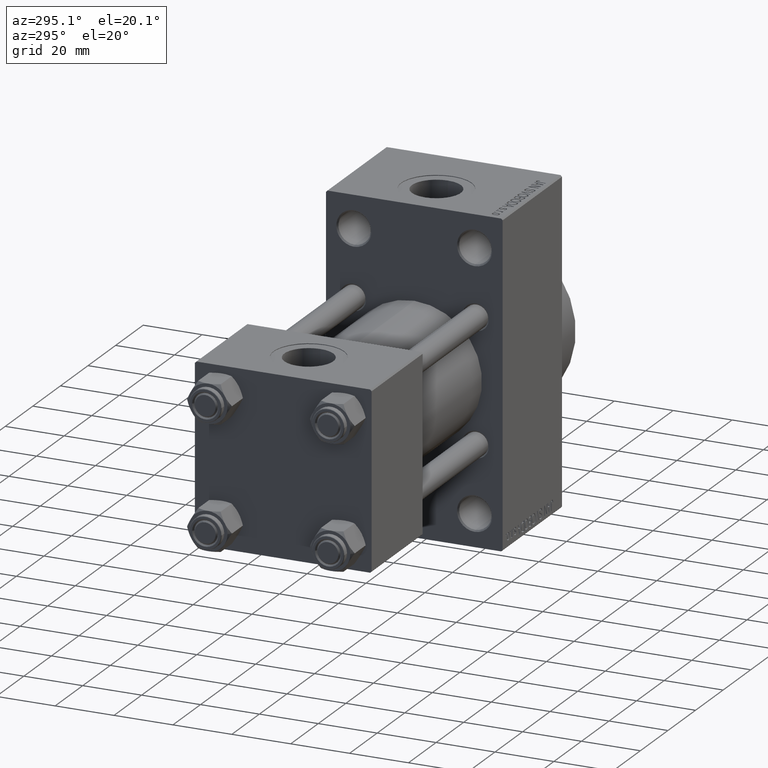
[diagram: clean part render]
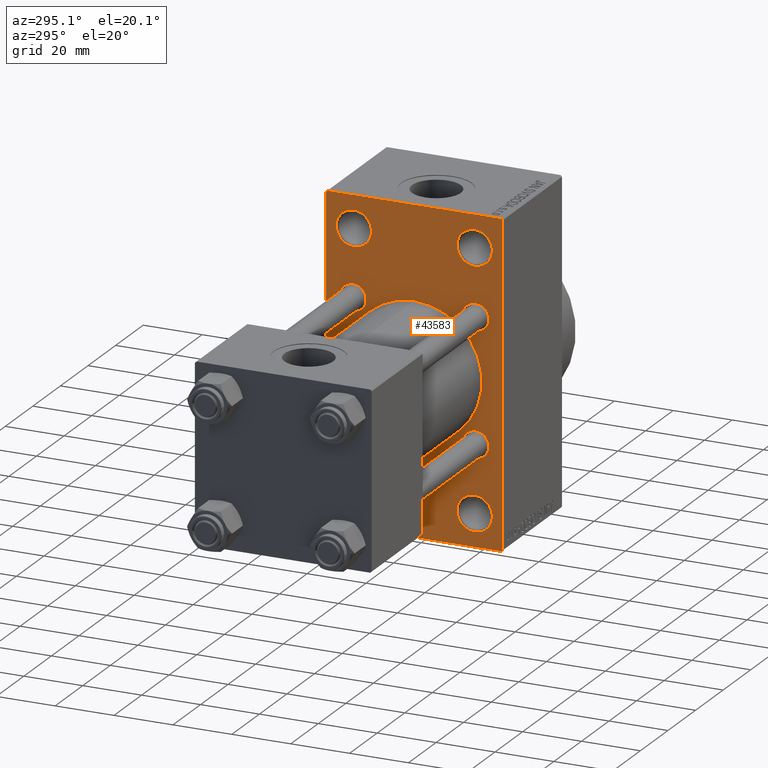
[diagram: same view with one face highlighted and labeled with its STEP entity id]
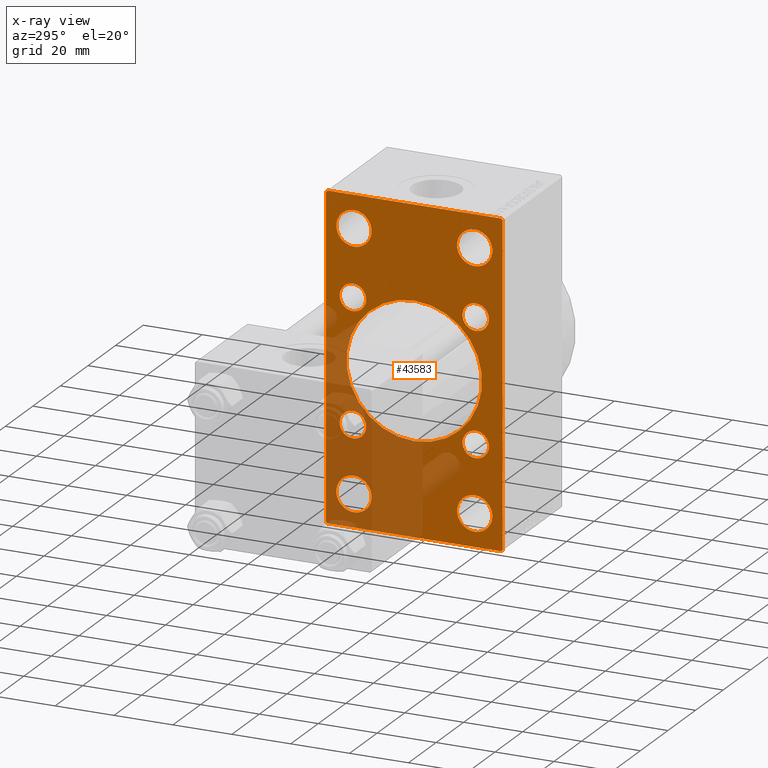
[diagram: x-ray of the same camera — body ghosted, the highlighted face saturated]
A machine part, auxiliary view. The second image highlights one B-rep face of the part: STEP entity #43583.
The next image is the same camera in x-ray: the body ghosted, the highlighted face saturated — about 33% of this face is hidden behind the body in this view.
In plain terms, the highlighted planar face has unit normal (-1, 0, 0).
Its self-contained STEP definition (entity closure, byte-faithful):
#114 = CARTESIAN_POINT ( 'NONE',  ( 95.00000000000000000, -30.00000000000000000, -53.99999999999998579 ) ) ;
#309 = CARTESIAN_POINT ( 'NONE',  ( 95.00000000000000000, 29.99999999999999645, 54.49999999999999289 ) ) ;
#493 = EDGE_CURVE ( 'NONE', #33752, #45703, #40603, .T. ) ;
#966 = CARTESIAN_POINT ( 'NONE',  ( 95.00000000000000000, 20.50000000000000000, -49.49999999999989342 ) ) ;
#1009 = EDGE_LOOP ( 'NONE', ( #5706, #17401 ) ) ;
#1228 = EDGE_CURVE ( 'NONE', #21912, #37575, #23251, .T. ) ;
#2008 = EDGE_CURVE ( 'NONE', #6698, #41210, #5831, .T. ) ;
#2037 = ORIENTED_EDGE ( 'NONE', *, *, #6344, .F. ) ;
#2277 = EDGE_CURVE ( 'NONE', #45703, #33752, #12196, .T. ) ;
#2357 = AXIS2_PLACEMENT_3D ( 'NONE', #40967, #37966, #44674 ) ;
#2407 = CARTESIAN_POINT ( 'NONE',  ( 95.00000000000000000, -20.84999999999999076, 20.85000000000000497 ) ) ;
#2445 = DIRECTION ( 'NONE',  ( 1.000000000000000000, -0.000000000000000000, 0.000000000000000000 ) ) ;
#2450 = CARTESIAN_POINT ( 'NONE',  ( 95.00000000000000000, 20.84999999999999787, -16.34999999999999432 ) ) ;
#2635 = CARTESIAN_POINT ( 'NONE',  ( 95.00000000000000000, -20.50000000000000000, 43.50000000000000000 ) ) ;
#2868 = CARTESIAN_POINT ( 'NONE',  ( 95.00000000000000000, -20.84999999999999076, -16.34999999999999787 ) ) ;
#2881 = CARTESIAN_POINT ( 'NONE',  ( 95.00000000000000000, -20.50000000000000000, 37.50000000000009948 ) ) ;
#3030 = EDGE_CURVE ( 'NONE', #25719, #4137, #48561, .T. ) ;
#3082 = CIRCLE ( 'NONE', #27627, 4.500000000000007105 ) ;
#3130 = DIRECTION ( 'NONE',  ( 1.000000000000000000, -0.000000000000000000, 0.000000000000000000 ) ) ;
#3325 = ORIENTED_EDGE ( 'NONE', *, *, #37409, .T. ) ;
#3609 = AXIS2_PLACEMENT_3D ( 'NONE', #44060, #2445, #35887 ) ;
#3653 = VERTEX_POINT ( 'NONE', #2881 ) ;
#3775 = ORIENTED_EDGE ( 'NONE', *, *, #2277, .T. ) ;
#4137 = VERTEX_POINT ( 'NONE', #19152 ) ;
#4773 = CARTESIAN_POINT ( 'NONE',  ( 95.00000000000000000, -20.84999999999999076, 16.34999999999999787 ) ) ;
#5491 = DIRECTION ( 'NONE',  ( 1.000000000000000000, -0.000000000000000000, 0.000000000000000000 ) ) ;
#5641 = PLANE ( 'NONE',  #37311 ) ;
#5706 = ORIENTED_EDGE ( 'NONE', *, *, #3030, .T. ) ;
#5831 = CIRCLE ( 'NONE', #33476, 5.999999999999894307 ) ;
#6296 = DIRECTION ( 'NONE',  ( 1.000000000000000000, -0.000000000000000000, 0.000000000000000000 ) ) ;
#6299 = EDGE_LOOP ( 'NONE', ( #48462, #29989 ) ) ;
#6344 = EDGE_CURVE ( 'NONE', #23209, #22646, #26307, .T. ) ;
#6584 = CARTESIAN_POINT ( 'NONE',  ( 95.00000000000000000, 29.49999999999999645, -54.49999999999999289 ) ) ;
#6698 = VERTEX_POINT ( 'NONE', #36423 ) ;
#6787 = CARTESIAN_POINT ( 'NONE',  ( 95.00000000000000000, 29.99999999999999645, -53.99999999999999289 ) ) ;
#7248 = CIRCLE ( 'NONE', #26215, 5.999999999999894307 ) ;
#7267 = DIRECTION ( 'NONE',  ( 1.000000000000000000, -0.000000000000000000, 0.000000000000000000 ) ) ;
#7418 = EDGE_CURVE ( 'NONE', #28485, #36546, #15395, .T. ) ;
#7431 = EDGE_CURVE ( 'NONE', #23236, #36546, #28003, .T. ) ;
#7649 = CARTESIAN_POINT ( 'NONE',  ( 95.00000000000000000, 20.50000000000000000, 37.50000000000009948 ) ) ;
#7671 = DIRECTION ( 'NONE',  ( -0.000000000000000000, -0.7071067811865474617, -0.7071067811865474617 ) ) ;
#8080 = EDGE_CURVE ( 'NONE', #9582, #44857, #9889, .T. ) ;
#8228 = CARTESIAN_POINT ( 'NONE',  ( 95.00000000000000000, -20.50000000000000000, -37.50000000000009948 ) ) ;
#8729 = DIRECTION ( 'NONE',  ( 1.000000000000000000, -0.000000000000000000, 0.000000000000000000 ) ) ;
#9004 = AXIS2_PLACEMENT_3D ( 'NONE', #2407, #3130, #40529 ) ;
#9119 = CARTESIAN_POINT ( 'NONE',  ( 95.00000000000000000, 20.84999999999999787, 16.34999999999999432 ) ) ;
#9436 = CARTESIAN_POINT ( 'NONE',  ( 95.00000000000000000, -30.00000000000000000, 54.50000000000000000 ) ) ;
#9582 = VERTEX_POINT ( 'NONE', #24610 ) ;
#9590 = CIRCLE ( 'NONE', #46752, 4.500000000000007105 ) ;
#9841 = EDGE_CURVE ( 'NONE', #19465, #28032, #3082, .T. ) ;
#9859 = FACE_BOUND ( 'NONE', #16601, .T. ) ;
#9889 = CIRCLE ( 'NONE', #32041, 23.00000000000000000 ) ;
#10366 = EDGE_CURVE ( 'NONE', #23209, #20829, #28634, .T. ) ;
#10675 = CARTESIAN_POINT ( 'NONE',  ( 95.00000000000000000, 20.84999999999999787, -20.85000000000000142 ) ) ;
#10837 = EDGE_CURVE ( 'NONE', #28032, #19465, #13428, .T. ) ;
#10886 = LINE ( 'NONE', #48977, #30011 ) ;
#11203 = EDGE_CURVE ( 'NONE', #4137, #25719, #36347, .T. ) ;
#11245 = EDGE_CURVE ( 'NONE', #20829, #29088, #10886, .T. ) ;
#11259 = CARTESIAN_POINT ( 'NONE',  ( 95.00000000000000000, 20.50000000000000000, 49.49999999999989342 ) ) ;
#11868 = FACE_BOUND ( 'NONE', #38235, .T. ) ;
#12134 = DIRECTION ( 'NONE',  ( 0.000000000000000000, 0.000000000000000000, 1.000000000000000000 ) ) ;
#12196 = CIRCLE ( 'NONE', #22471, 5.999999999999894307 ) ;
#12387 = ORIENTED_EDGE ( 'NONE', *, *, #32466, .T. ) ;
#13035 = DIRECTION ( 'NONE',  ( 0.000000000000000000, 0.000000000000000000, 1.000000000000000000 ) ) ;
#13428 = CIRCLE ( 'NONE', #2357, 4.500000000000007105 ) ;
#13565 = FACE_BOUND ( 'NONE', #27387, .T. ) ;
#14193 = EDGE_LOOP ( 'NONE', ( #19986, #42072, #37535, #14805, #2037, #29448, #36638, #16613 ) ) ;
#14790 = DIRECTION ( 'NONE',  ( 0.000000000000000000, 0.000000000000000000, -1.000000000000000000 ) ) ;
#14805 = ORIENTED_EDGE ( 'NONE', *, *, #45612, .T. ) ;
#14892 = DIRECTION ( 'NONE',  ( 0.000000000000000000, 0.000000000000000000, 1.000000000000000000 ) ) ;
#15377 = CARTESIAN_POINT ( 'NONE',  ( 95.00000000000000000, -20.84999999999999076, 20.85000000000000497 ) ) ;
#15395 = LINE ( 'NONE', #45601, #46252 ) ;
#16008 = ORIENTED_EDGE ( 'NONE', *, *, #28900, .T. ) ;
#16193 = LINE ( 'NONE', #46625, #41457 ) ;
#16439 = DIRECTION ( 'NONE',  ( 0.000000000000000000, -1.000000000000000000, -1.156482317317871478E-16 ) ) ;
#16601 = EDGE_LOOP ( 'NONE', ( #38370, #44118 ) ) ;
#16613 = ORIENTED_EDGE ( 'NONE', *, *, #43398, .T. ) ;
#17139 = DIRECTION ( 'NONE',  ( 0.000000000000000000, 0.000000000000000000, 1.000000000000000000 ) ) ;
#17336 = DIRECTION ( 'NONE',  ( 0.000000000000000000, 0.000000000000000000, 1.000000000000000000 ) ) ;
#17401 = ORIENTED_EDGE ( 'NONE', *, *, #11203, .T. ) ;
#17752 = DIRECTION ( 'NONE',  ( 1.000000000000000000, -0.000000000000000000, 0.000000000000000000 ) ) ;
#18582 = DIRECTION ( 'NONE',  ( 1.000000000000000000, -0.000000000000000000, 0.000000000000000000 ) ) ;
#18812 = LINE ( 'NONE', #22272, #32577 ) ;
#18859 = EDGE_LOOP ( 'NONE', ( #31043, #46426 ) ) ;
#19152 = CARTESIAN_POINT ( 'NONE',  ( 95.00000000000000000, 20.84999999999999787, -25.35000000000000853 ) ) ;
#19211 = CIRCLE ( 'NONE', #46870, 4.500000000000007105 ) ;
#19283 = EDGE_CURVE ( 'NONE', #3653, #48858, #25555, .T. ) ;
#19465 = VERTEX_POINT ( 'NONE', #35527 ) ;
#19583 = CARTESIAN_POINT ( 'NONE',  ( 95.00000000000000000, -20.50000000000000000, -43.50000000000000000 ) ) ;
#19986 = ORIENTED_EDGE ( 'NONE', *, *, #48258, .T. ) ;
#20245 = AXIS2_PLACEMENT_3D ( 'NONE', #37463, #7267, #30274 ) ;
#20533 = AXIS2_PLACEMENT_3D ( 'NONE', #31697, #27993, #47052 ) ;
#20797 = VECTOR ( 'NONE', #33545, 1000.000000000000114 ) ;
#20829 = VERTEX_POINT ( 'NONE', #34924 ) ;
#21202 = CIRCLE ( 'NONE', #27508, 4.500000000000007105 ) ;
#21260 = DIRECTION ( 'NONE',  ( -0.000000000000000000, 0.000000000000000000, 1.000000000000000000 ) ) ;
#21912 = VERTEX_POINT ( 'NONE', #44660 ) ;
#22080 = VECTOR ( 'NONE', #47207, 1000.000000000000000 ) ;
#22240 = EDGE_CURVE ( 'NONE', #37575, #21912, #19211, .T. ) ;
#22272 = CARTESIAN_POINT ( 'NONE',  ( 95.00000000000000000, 41.99999999999998579, -41.99999999999998579 ) ) ;
#22471 = AXIS2_PLACEMENT_3D ( 'NONE', #19583, #42593, #28212 ) ;
#22646 = VERTEX_POINT ( 'NONE', #32061 ) ;
#23209 = VERTEX_POINT ( 'NONE', #35412 ) ;
#23236 = VERTEX_POINT ( 'NONE', #39615 ) ;
#23251 = CIRCLE ( 'NONE', #9004, 4.500000000000007105 ) ;
#23547 = VERTEX_POINT ( 'NONE', #9119 ) ;
#24324 = DIRECTION ( 'NONE',  ( 0.000000000000000000, 0.000000000000000000, 1.000000000000000000 ) ) ;
#24610 = CARTESIAN_POINT ( 'NONE',  ( 95.00000000000000000, -2.602085213965210642E-15, 23.00000000000000000 ) ) ;
#24627 = VERTEX_POINT ( 'NONE', #37147 ) ;
#24710 = FACE_BOUND ( 'NONE', #32332, .T. ) ;
#24961 = FACE_BOUND ( 'NONE', #30706, .T. ) ;
#25555 = CIRCLE ( 'NONE', #37401, 5.999999999999894307 ) ;
#25719 = VERTEX_POINT ( 'NONE', #2450 ) ;
#25772 = DIRECTION ( 'NONE',  ( 0.000000000000000000, 0.000000000000000000, 1.000000000000000000 ) ) ;
#26215 = AXIS2_PLACEMENT_3D ( 'NONE', #46839, #8729, #24324 ) ;
#26234 = CARTESIAN_POINT ( 'NONE',  ( 95.00000000000000000, -20.84999999999999076, -20.85000000000000497 ) ) ;
#26307 = LINE ( 'NONE', #309, #42418 ) ;
#27174 = AXIS2_PLACEMENT_3D ( 'NONE', #45338, #33703, #14892 ) ;
#27387 = EDGE_LOOP ( 'NONE', ( #40195, #38818 ) ) ;
#27508 = AXIS2_PLACEMENT_3D ( 'NONE', #28617, #35798, #13035 ) ;
#27627 = AXIS2_PLACEMENT_3D ( 'NONE', #26234, #18582, #12134 ) ;
#27953 = CIRCLE ( 'NONE', #40613, 5.999999999999894307 ) ;
#27993 = DIRECTION ( 'NONE',  ( 1.000000000000000000, -0.000000000000000000, 0.000000000000000000 ) ) ;
#28003 = LINE ( 'NONE', #9436, #28859 ) ;
#28027 = VERTEX_POINT ( 'NONE', #6584 ) ;
#28032 = VERTEX_POINT ( 'NONE', #2868 ) ;
#28212 = DIRECTION ( 'NONE',  ( 0.000000000000000000, 0.000000000000000000, 1.000000000000000000 ) ) ;
#28470 = CARTESIAN_POINT ( 'NONE',  ( 95.00000000000000000, -20.50000000000000000, 43.50000000000000000 ) ) ;
#28485 = VERTEX_POINT ( 'NONE', #29784 ) ;
#28617 = CARTESIAN_POINT ( 'NONE',  ( 95.00000000000000000, 20.84999999999999787, 20.85000000000000142 ) ) ;
#28634 = LINE ( 'NONE', #32100, #22080 ) ;
#28859 = VECTOR ( 'NONE', #38660, 1000.000000000000000 ) ;
#28900 = EDGE_CURVE ( 'NONE', #41210, #6698, #41582, .T. ) ;
#29088 = VERTEX_POINT ( 'NONE', #6787 ) ;
#29151 = EDGE_CURVE ( 'NONE', #39595, #33312, #46315, .T. ) ;
#29385 = CARTESIAN_POINT ( 'NONE',  ( 95.00000000000000000, -2.602085213965210642E-15, 0.000000000000000000 ) ) ;
#29448 = ORIENTED_EDGE ( 'NONE', *, *, #10366, .T. ) ;
#29784 = CARTESIAN_POINT ( 'NONE',  ( 95.00000000000000000, -29.50000000000000355, -54.50000000000000000 ) ) ;
#29989 = ORIENTED_EDGE ( 'NONE', *, *, #22240, .T. ) ;
#30011 = VECTOR ( 'NONE', #37358, 1000.000000000000000 ) ;
#30018 = DIRECTION ( 'NONE',  ( 0.000000000000000000, -1.000000000000000000, 1.156482317317871478E-16 ) ) ;
#30274 = DIRECTION ( 'NONE',  ( 0.000000000000000000, 0.000000000000000000, 1.000000000000000000 ) ) ;
#30706 = EDGE_LOOP ( 'NONE', ( #45013, #16008 ) ) ;
#31043 = ORIENTED_EDGE ( 'NONE', *, *, #46504, .T. ) ;
#31697 = CARTESIAN_POINT ( 'NONE',  ( 95.00000000000000000, 20.84999999999999787, -20.85000000000000142 ) ) ;
#31933 = ORIENTED_EDGE ( 'NONE', *, *, #8080, .T. ) ;
#32041 = AXIS2_PLACEMENT_3D ( 'NONE', #29385, #44494, #14790 ) ;
#32061 = CARTESIAN_POINT ( 'NONE',  ( 95.00000000000000000, -29.49999999999997513, 54.50000000000000000 ) ) ;
#32100 = CARTESIAN_POINT ( 'NONE',  ( 95.00000000000000000, 42.00000000000082423, 41.99999999999849365 ) ) ;
#32108 = DIRECTION ( 'NONE',  ( 0.000000000000000000, 0.000000000000000000, 1.000000000000000000 ) ) ;
#32332 = EDGE_LOOP ( 'NONE', ( #31933, #12387 ) ) ;
#32466 = EDGE_CURVE ( 'NONE', #44857, #9582, #39319, .T. ) ;
#32577 = VECTOR ( 'NONE', #7671, 1000.000000000000114 ) ;
#32609 = CARTESIAN_POINT ( 'NONE',  ( 95.00000000000000000, 0.000000000000000000, 0.000000000000000000 ) ) ;
#33261 = EDGE_CURVE ( 'NONE', #24627, #23547, #21202, .T. ) ;
#33312 = VERTEX_POINT ( 'NONE', #11259 ) ;
#33476 = AXIS2_PLACEMENT_3D ( 'NONE', #35447, #5491, #17139 ) ;
#33545 = DIRECTION ( 'NONE',  ( -0.000000000000000000, 0.7071067811865451302, 0.7071067811865500152 ) ) ;
#33703 = DIRECTION ( 'NONE',  ( 1.000000000000000000, -0.000000000000000000, 0.000000000000000000 ) ) ;
#33752 = VERTEX_POINT ( 'NONE', #8228 ) ;
#33786 = AXIS2_PLACEMENT_3D ( 'NONE', #35185, #41706, #42631 ) ;
#34603 = ORIENTED_EDGE ( 'NONE', *, *, #493, .T. ) ;
#34632 = CARTESIAN_POINT ( 'NONE',  ( 95.00000000000000000, -20.50000000000000000, 49.49999999999989342 ) ) ;
#34924 = CARTESIAN_POINT ( 'NONE',  ( 95.00000000000000000, 29.99999999999999645, 53.99999999999999289 ) ) ;
#35185 = CARTESIAN_POINT ( 'NONE',  ( 95.00000000000000000, -2.602085213965210642E-15, 0.000000000000000000 ) ) ;
#35412 = CARTESIAN_POINT ( 'NONE',  ( 95.00000000000000000, 29.50000000000002132, 54.49999999999999289 ) ) ;
#35447 = CARTESIAN_POINT ( 'NONE',  ( 95.00000000000000000, 20.50000000000000000, -43.50000000000000000 ) ) ;
#35527 = CARTESIAN_POINT ( 'NONE',  ( 95.00000000000000000, -20.84999999999999076, -25.35000000000001208 ) ) ;
#35738 = EDGE_LOOP ( 'NONE', ( #45311, #3325 ) ) ;
#35798 = DIRECTION ( 'NONE',  ( 1.000000000000000000, -0.000000000000000000, 0.000000000000000000 ) ) ;
#35887 = DIRECTION ( 'NONE',  ( 0.000000000000000000, 0.000000000000000000, 1.000000000000000000 ) ) ;
#35934 = AXIS2_PLACEMENT_3D ( 'NONE', #10675, #40391, #25772 ) ;
#36258 = DIRECTION ( 'NONE',  ( 0.000000000000000000, 0.000000000000000000, 1.000000000000000000 ) ) ;
#36335 = FACE_BOUND ( 'NONE', #35738, .T. ) ;
#36347 = CIRCLE ( 'NONE', #20533, 4.500000000000007105 ) ;
#36423 = CARTESIAN_POINT ( 'NONE',  ( 95.00000000000000000, 20.50000000000000000, -37.50000000000009948 ) ) ;
#36546 = VERTEX_POINT ( 'NONE', #114 ) ;
#36638 = ORIENTED_EDGE ( 'NONE', *, *, #11245, .T. ) ;
#37147 = CARTESIAN_POINT ( 'NONE',  ( 95.00000000000000000, 20.84999999999999787, 25.35000000000000853 ) ) ;
#37311 = AXIS2_PLACEMENT_3D ( 'NONE', #32609, #43296, #21260 ) ;
#37358 = DIRECTION ( 'NONE',  ( 0.000000000000000000, 0.000000000000000000, -1.000000000000000000 ) ) ;
#37401 = AXIS2_PLACEMENT_3D ( 'NONE', #2635, #17752, #32108 ) ;
#37409 = EDGE_CURVE ( 'NONE', #23547, #24627, #9590, .T. ) ;
#37463 = CARTESIAN_POINT ( 'NONE',  ( 95.00000000000000000, 20.50000000000000000, 43.50000000000000000 ) ) ;
#37535 = ORIENTED_EDGE ( 'NONE', *, *, #7431, .F. ) ;
#37575 = VERTEX_POINT ( 'NONE', #4773 ) ;
#37966 = DIRECTION ( 'NONE',  ( 1.000000000000000000, -0.000000000000000000, 0.000000000000000000 ) ) ;
#38155 = DIRECTION ( 'NONE',  ( 0.000000000000000000, -0.7071067811865352493, 0.7071067811865597852 ) ) ;
#38235 = EDGE_LOOP ( 'NONE', ( #34603, #3775 ) ) ;
#38370 = ORIENTED_EDGE ( 'NONE', *, *, #39140, .T. ) ;
#38396 = DIRECTION ( 'NONE',  ( 0.000000000000000000, 0.000000000000000000, 1.000000000000000000 ) ) ;
#38576 = CARTESIAN_POINT ( 'NONE',  ( 95.00000000000000000, 20.84999999999999787, 20.85000000000000142 ) ) ;
#38660 = DIRECTION ( 'NONE',  ( 0.000000000000000000, 0.000000000000000000, -1.000000000000000000 ) ) ;
#38818 = ORIENTED_EDGE ( 'NONE', *, *, #9841, .T. ) ;
#39140 = EDGE_CURVE ( 'NONE', #33312, #39595, #7248, .T. ) ;
#39319 = CIRCLE ( 'NONE', #33786, 23.00000000000000000 ) ;
#39595 = VERTEX_POINT ( 'NONE', #7649 ) ;
#39615 = CARTESIAN_POINT ( 'NONE',  ( 95.00000000000000000, -30.00000000000000000, 53.99999999999997158 ) ) ;
#40061 = FACE_OUTER_BOUND ( 'NONE', #14193, .T. ) ;
#40195 = ORIENTED_EDGE ( 'NONE', *, *, #10837, .T. ) ;
#40299 = FACE_BOUND ( 'NONE', #6299, .T. ) ;
#40391 = DIRECTION ( 'NONE',  ( 1.000000000000000000, -0.000000000000000000, 0.000000000000000000 ) ) ;
#40499 = LINE ( 'NONE', #48153, #20797 ) ;
#40529 = DIRECTION ( 'NONE',  ( 0.000000000000000000, 0.000000000000000000, 1.000000000000000000 ) ) ;
#40603 = CIRCLE ( 'NONE', #27174, 5.999999999999894307 ) ;
#40613 = AXIS2_PLACEMENT_3D ( 'NONE', #28470, #47046, #17336 ) ;
#40967 = CARTESIAN_POINT ( 'NONE',  ( 95.00000000000000000, -20.84999999999999076, -20.85000000000000497 ) ) ;
#41210 = VERTEX_POINT ( 'NONE', #966 ) ;
#41457 = VECTOR ( 'NONE', #16439, 1000.000000000000000 ) ;
#41582 = CIRCLE ( 'NONE', #3609, 5.999999999999894307 ) ;
#41706 = DIRECTION ( 'NONE',  ( 1.000000000000000000, 0.000000000000000000, 0.000000000000000000 ) ) ;
#42072 = ORIENTED_EDGE ( 'NONE', *, *, #7418, .T. ) ;
#42418 = VECTOR ( 'NONE', #30018, 1000.000000000000000 ) ;
#42593 = DIRECTION ( 'NONE',  ( 1.000000000000000000, -0.000000000000000000, 0.000000000000000000 ) ) ;
#42631 = DIRECTION ( 'NONE',  ( 0.000000000000000000, 0.000000000000000000, -1.000000000000000000 ) ) ;
#43296 = DIRECTION ( 'NONE',  ( -1.000000000000000000, 0.000000000000000000, -0.000000000000000000 ) ) ;
#43398 = EDGE_CURVE ( 'NONE', #29088, #28027, #18812, .T. ) ;
#43583 = ADVANCED_FACE ( 'NONE', ( #45776, #11868, #24961, #9859, #40299, #36335, #46994, #13565, #24710, #40061 ), #5641, .T. ) ;
#44060 = CARTESIAN_POINT ( 'NONE',  ( 95.00000000000000000, 20.50000000000000000, -43.50000000000000000 ) ) ;
#44118 = ORIENTED_EDGE ( 'NONE', *, *, #29151, .T. ) ;
#44494 = DIRECTION ( 'NONE',  ( 1.000000000000000000, 0.000000000000000000, 0.000000000000000000 ) ) ;
#44660 = CARTESIAN_POINT ( 'NONE',  ( 95.00000000000000000, -20.84999999999999076, 25.35000000000001208 ) ) ;
#44674 = DIRECTION ( 'NONE',  ( 0.000000000000000000, 0.000000000000000000, 1.000000000000000000 ) ) ;
#44857 = VERTEX_POINT ( 'NONE', #45670 ) ;
#45013 = ORIENTED_EDGE ( 'NONE', *, *, #2008, .T. ) ;
#45183 = CARTESIAN_POINT ( 'NONE',  ( 95.00000000000000000, -20.50000000000000000, -49.49999999999989342 ) ) ;
#45311 = ORIENTED_EDGE ( 'NONE', *, *, #33261, .T. ) ;
#45338 = CARTESIAN_POINT ( 'NONE',  ( 95.00000000000000000, -20.50000000000000000, -43.50000000000000000 ) ) ;
#45601 = CARTESIAN_POINT ( 'NONE',  ( 95.00000000000000000, -42.00000000000051159, -41.99999999999905498 ) ) ;
#45612 = EDGE_CURVE ( 'NONE', #23236, #22646, #40499, .T. ) ;
#45670 = CARTESIAN_POINT ( 'NONE',  ( 95.00000000000000000, 2.146024240737012665E-16, -23.00000000000000000 ) ) ;
#45703 = VERTEX_POINT ( 'NONE', #45183 ) ;
#45776 = FACE_BOUND ( 'NONE', #18859, .T. ) ;
#46252 = VECTOR ( 'NONE', #38155, 1000.000000000000000 ) ;
#46311 = DIRECTION ( 'NONE',  ( 1.000000000000000000, -0.000000000000000000, 0.000000000000000000 ) ) ;
#46315 = CIRCLE ( 'NONE', #20245, 5.999999999999894307 ) ;
#46426 = ORIENTED_EDGE ( 'NONE', *, *, #19283, .T. ) ;
#46504 = EDGE_CURVE ( 'NONE', #48858, #3653, #27953, .T. ) ;
#46625 = CARTESIAN_POINT ( 'NONE',  ( 95.00000000000000000, 29.99999999999999645, -54.49999999999999289 ) ) ;
#46752 = AXIS2_PLACEMENT_3D ( 'NONE', #38576, #6296, #36258 ) ;
#46839 = CARTESIAN_POINT ( 'NONE',  ( 95.00000000000000000, 20.50000000000000000, 43.50000000000000000 ) ) ;
#46870 = AXIS2_PLACEMENT_3D ( 'NONE', #15377, #46311, #38396 ) ;
#46994 = FACE_BOUND ( 'NONE', #1009, .T. ) ;
#47046 = DIRECTION ( 'NONE',  ( 1.000000000000000000, -0.000000000000000000, 0.000000000000000000 ) ) ;
#47052 = DIRECTION ( 'NONE',  ( 0.000000000000000000, 0.000000000000000000, 1.000000000000000000 ) ) ;
#47207 = DIRECTION ( 'NONE',  ( 0.000000000000000000, 0.7071067811865279218, -0.7071067811865671127 ) ) ;
#48153 = CARTESIAN_POINT ( 'NONE',  ( 95.00000000000000000, -42.00000000000008527, 41.99999999999979394 ) ) ;
#48258 = EDGE_CURVE ( 'NONE', #28027, #28485, #16193, .T. ) ;
#48462 = ORIENTED_EDGE ( 'NONE', *, *, #1228, .T. ) ;
#48561 = CIRCLE ( 'NONE', #35934, 4.500000000000007105 ) ;
#48858 = VERTEX_POINT ( 'NONE', #34632 ) ;
#48977 = CARTESIAN_POINT ( 'NONE',  ( 95.00000000000000000, 29.99999999999999645, 54.49999999999999289 ) ) ;